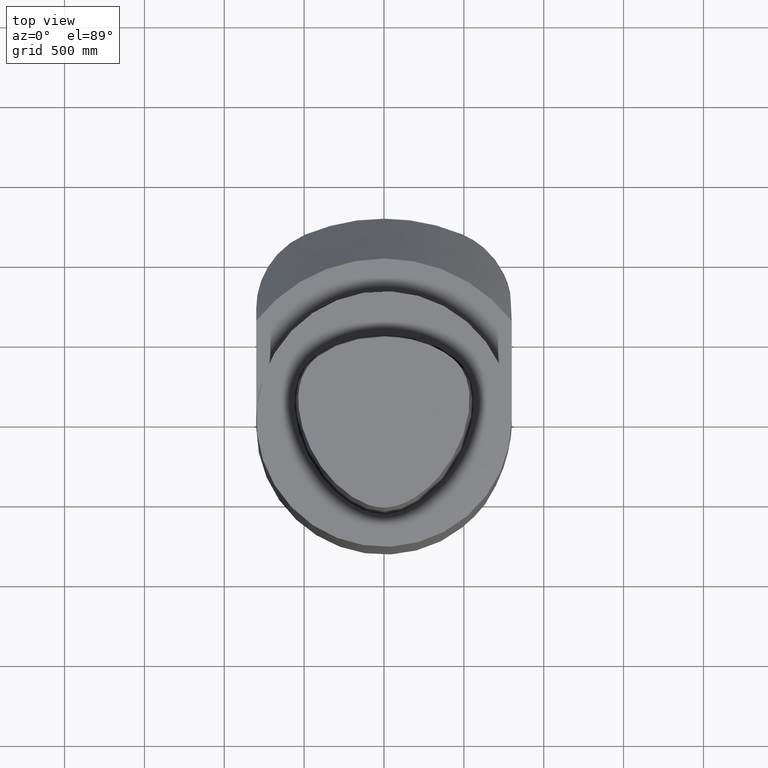
[diagram: clean part render]
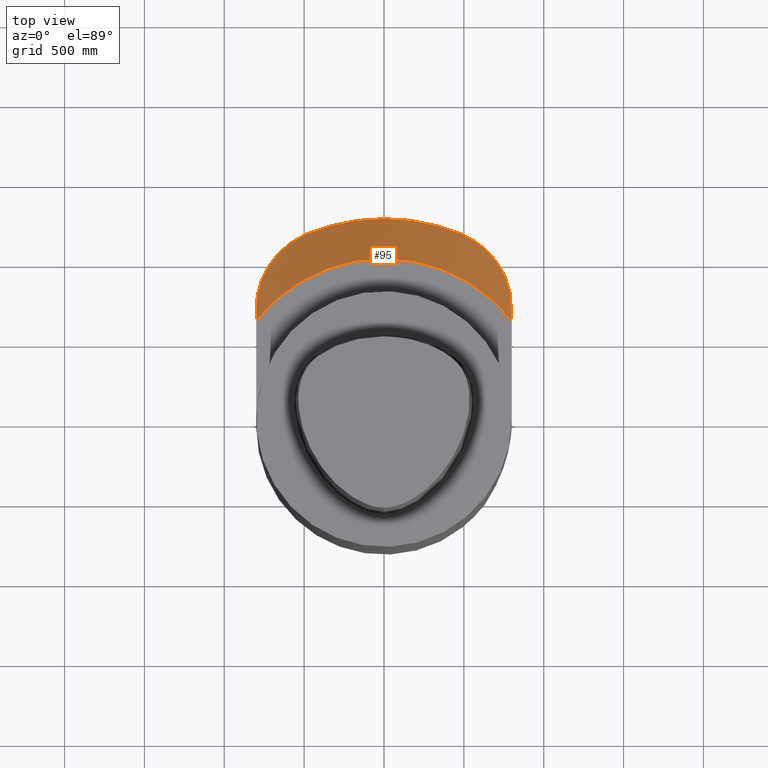
[diagram: same view with one face highlighted and labeled with its STEP entity id]
A machine part, top view. The second image highlights one B-rep face of the part: STEP entity #95.
In plain terms, the highlighted conical surface has half-angle 45 deg.
Its self-contained STEP definition (entity closure, byte-faithful):
#95=ADVANCED_FACE('Unnamed[1]',(#270),#271,.T.);
#108=EDGE_CURVE('Unnamed[1]',#292,#293,#294,.T.);
#167=EDGE_CURVE('Unnamed[1]',#376,#338,#377,.T.);
#174=EDGE_CURVE('Unnamed[1]',#293,#386,#387,.T.);
#188=EDGE_CURVE('Unnamed[1]',#403,#289,#404,.T.);
#212=EDGE_CURVE('Unnamed[1]',#376,#386,#435,.T.);
#218=EDGE_CURVE('Unnamed[1]',#338,#403,#441,.T.);
#229=EDGE_CURVE('Unnamed[1]',#289,#292,#453,.T.);
#270=FACE_OUTER_BOUND('',#488,.T.);
#271=CONICAL_SURFACE('',#489,45.0000000000013,0.785398163397416);
#289=VERTEX_POINT('',#515);
#292=VERTEX_POINT('',#520);
#293=VERTEX_POINT('',#521);
#294=B_SPLINE_CURVE_WITH_KNOTS('',3,(#522,#523,#524,#525,#526,#527,#528,#529,#530,#531,#532,#533,#534,#535,#536,#537),.UNSPECIFIED.,.F.,.F.,(4,2,2,2,2,2,2,4),(3.99685533282081,7.99371066564163,11.9905659984624,15.9874213312833,19.2410907200873,22.4947601088912,25.7484294976952,29.0020988864992),.UNSPECIFIED.);
#338=VERTEX_POINT('',#599);
#376=VERTEX_POINT('',#701);
#377=B_SPLINE_CURVE_WITH_KNOTS('',3,(#702,#703,#704,#705,#706,#707,#708,#709,#710,#711,#712,#713,#714,#715,#716,#717,#718,#719),.UNSPECIFIED.,.F.,.F.,(4,2,2,2,2,2,2,2,4),(25.7528245711178,29.0069489375672,32.2610733040165,35.5151976704659,38.7693220369153,42.0234464033646,46.021059271307,50.0186721392495,54.0162850071919),.UNSPECIFIED.);
#386=VERTEX_POINT('',#731);
#387=B_SPLINE_CURVE_WITH_KNOTS('',3,(#732,#733,#734,#735,#736,#737,#738,#739,#740,#741,#742,#743,#744,#745),.UNSPECIFIED.,.F.,.F.,(4,2,2,2,2,2,4),(51.7908781094984,56.4993030721826,61.2077280348668,65.916152997551,70.6245779602351,75.3330029229193,80.0417454363844),.UNSPECIFIED.);
#403=VERTEX_POINT('',#767);
#404=CIRCLE('',#768,40.000000000002);
#435=CIRCLE('',#877,50.0000000000006);
#441=(B_SPLINE_CURVE(2,(#889,#890,#891),.UNSPECIFIED.,.F.,.F.)B_SPLINE_CURVE_WITH_KNOTS((3,3),(0.0,17.3552936339432),.UNSPECIFIED.)RATIONAL_B_SPLINE_CURVE((1.0,1.01264270198957,1.0))BOUNDED_CURVE()REPRESENTATION_ITEM('')GEOMETRIC_REPRESENTATION_ITEM()CURVE());
#453=(B_SPLINE_CURVE(2,(#989,#990,#991),.UNSPECIFIED.,.F.,.F.)B_SPLINE_CURVE_WITH_KNOTS((3,3),(0.0,17.9505613842272),.UNSPECIFIED.)RATIONAL_B_SPLINE_CURVE((1.0,1.01227031404473,1.0))BOUNDED_CURVE()REPRESENTATION_ITEM('')GEOMETRIC_REPRESENTATION_ITEM()CURVE());
#488=EDGE_LOOP('',(#1050,#1051,#1052,#1053,#1054,#1055,#1056));
#489=AXIS2_PLACEMENT_3D('',#1057,#1058,#1059);
#515=CARTESIAN_POINT('',(31.4999999999998,24.6525860712455,-24.0));
#520=CARTESIAN_POINT('',(31.1202210060076,31.5855458145115,-28.3408937648218));
#521=CARTESIAN_POINT('',(19.169546318746,46.1775147707604,-33.99834373727));
#522=CARTESIAN_POINT('',(31.4836714121862,26.8985008861559,-25.4095510180065));
#523=CARTESIAN_POINT('',(31.5307709689678,28.0633682666181,-26.2020264842946));
#524=CARTESIAN_POINT('',(31.4762891277182,29.2735751745386,-26.9734597059358));
#525=CARTESIAN_POINT('',(31.1345513801991,31.7055286309925,-28.4254444635838));
#526=CARTESIAN_POINT('',(30.8469485336614,32.9286082486609,-29.1069395953025));
#527=CARTESIAN_POINT('',(30.04246955808,35.3059537151175,-30.3451062098025));
#528=CARTESIAN_POINT('',(29.5254030342725,36.4601202044391,-30.9018447518448));
#529=CARTESIAN_POINT('',(28.4181286849675,38.420893460769,-31.779588988991));
#530=CARTESIAN_POINT('',(27.826692802136,39.3098035346396,-32.1507569772398));
#531=CARTESIAN_POINT('',(26.4633599374821,41.0217333989237,-32.8057572576398));
#532=CARTESIAN_POINT('',(25.6913906263684,41.8446750714734,-33.0896431678623));
#533=CARTESIAN_POINT('',(24.0041260234216,43.3567529970739,-33.5456837693404));
#534=CARTESIAN_POINT('',(23.0874184455948,44.0470382876636,-33.7182271613306));
#535=CARTESIAN_POINT('',(21.1697701190347,45.25007503279,-33.944570245779));
#536=CARTESIAN_POINT('',(20.1687876707419,45.7627649262388,-33.9983438433738));
#537=CARTESIAN_POINT('',(19.1670899300591,46.1785345230162,-33.9983438433738));
#599=CARTESIAN_POINT('',(-31.5000000000001,27.710094358173,-25.9535377452093));
#701=CARTESIAN_POINT('',(-19.4720041661734,46.0525900873402,-33.9999999999993));
#702=CARTESIAN_POINT('',(-15.9912740201936,47.1992825833284,-33.8346578313695));
#703=CARTESIAN_POINT('',(-17.0943964799877,46.9450685448622,-33.9478644538266));
#704=CARTESIAN_POINT('',(-18.1643867689897,46.5982531012473,-34.0016554433048));
#705=CARTESIAN_POINT('',(-20.1681004955637,45.7666894278164,-34.0016554433048));
#706=CARTESIAN_POINT('',(-21.1692363925338,45.2539642711425,-33.9478644538266));
#707=CARTESIAN_POINT('',(-23.0871640085857,44.0508144823768,-33.7214512089124));
#708=CARTESIAN_POINT('',(-24.0039974557535,43.3604514558362,-33.5488550663357));
#709=CARTESIAN_POINT('',(-25.6914750305883,41.8481871820982,-33.0926781951172));
#710=CARTESIAN_POINT('',(-26.4635319745331,41.0251364661087,-32.8087085442073));
#711=CARTESIAN_POINT('',(-27.8269974150747,39.3129729202713,-32.1535181277358));
#712=CARTESIAN_POINT('',(-28.4184782509614,38.423938232725,-31.7822437033853));
#713=CARTESIAN_POINT('',(-29.5258390652618,36.462837326873,-30.9042276131235));
#714=CARTESIAN_POINT('',(-30.0429248640911,35.3084595234586,-30.3473077978641));
#715=CARTESIAN_POINT('',(-30.8473639987573,32.9306998961041,-29.1087480764684));
#716=CARTESIAN_POINT('',(-31.1349077743321,31.7074174652534,-28.4270410576744));
#717=CARTESIAN_POINT('',(-31.4764624864618,29.2750860626482,-26.9746146615626));
#718=CARTESIAN_POINT('',(-31.5308202847316,28.0647036723589,-26.2029512717335));
#719=CARTESIAN_POINT('',(-31.4835740242651,26.8996813667174,-25.4102437927157));
#731=CARTESIAN_POINT('',(-0.00215974573172323,49.9999999533556,-33.9999999999993));
#732=CARTESIAN_POINT('',(23.6459115898771,44.052997292243,-33.9979570117273));
#733=CARTESIAN_POINT('',(22.1814966518667,44.8391810661555,-33.9980835270623));
#734=CARTESIAN_POINT('',(20.6730336621863,45.5546367378678,-33.998213847362));
#735=CARTESIAN_POINT('',(17.5934830443397,46.8304944196465,-33.9984798971886));
#736=CARTESIAN_POINT('',(16.0210177916453,47.3914671794928,-33.9986157457312));
#737=CARTESIAN_POINT('',(12.8383320599857,48.351100271922,-33.998890703415));
#738=CARTESIAN_POINT('',(11.2281103078048,48.7497563817975,-33.9990298126657));
#739=CARTESIAN_POINT('',(7.99943411484802,49.382650340007,-33.9993087412234));
#740=CARTESIAN_POINT('',(6.38081301651385,49.6169115926764,-33.9994485749278));
#741=CARTESIAN_POINT('',(3.16583398429019,49.9255241333955,-33.9997263178511));
#742=CARTESIAN_POINT('',(1.56947497584817,49.9998642271643,-33.999864227163));
#743=CARTESIAN_POINT('',(-1.56958082610766,50.0001354088223,-34.000135408821));
#744=CARTESIAN_POINT('',(-3.16605859430771,49.9260611345788,-34.0002733272821));
#745=CARTESIAN_POINT('',(-4.77367907535406,49.7720123064385,-34.000412207767));
#767=CARTESIAN_POINT('',(-31.5000000000001,24.6525860712452,-24.0));
#768=AXIS2_PLACEMENT_3D('',#1193,#1194,#1195);
#877=AXIS2_PLACEMENT_3D('',#1246,#1247,#1248);
#889=CARTESIAN_POINT('',(-31.5000000000002,38.8297566307085,-33.9999999999993));
#890=CARTESIAN_POINT('',(-31.5000000000001,30.9535507643402,-27.8833768607101));
#891=CARTESIAN_POINT('',(-31.5000000000001,24.6525860712451,-24.0));
#989=CARTESIAN_POINT('',(31.4999999999999,24.6525860712454,-24.0));
#990=CARTESIAN_POINT('',(31.1639087074079,31.3151129702548,-27.8415410528293));
#991=CARTESIAN_POINT('',(30.6250731240223,39.5240545960501,-34.0004599535158));
#1050=ORIENTED_EDGE('',*,*,#229,.T.);
#1051=ORIENTED_EDGE('',*,*,#108,.T.);
#1052=ORIENTED_EDGE('',*,*,#174,.T.);
#1053=ORIENTED_EDGE('',*,*,#212,.F.);
#1054=ORIENTED_EDGE('',*,*,#167,.T.);
#1055=ORIENTED_EDGE('',*,*,#218,.T.);
#1056=ORIENTED_EDGE('',*,*,#188,.T.);
#1057=CARTESIAN_POINT('',(3.55147571752728E-015,-1.77573785876364E-015,-28.9999999999996));
#1058=DIRECTION('',(1.22464679914735E-016,-6.12323399573677E-017,-1.0));
#1059=DIRECTION('',(1.0,-1.83697019872103E-016,1.22464679914735E-016));
#1193=CARTESIAN_POINT('',(2.93915231795365E-015,-1.46957615897682E-015,-24.0));
#1194=DIRECTION('',(1.22464679914735E-016,-6.12323399573677E-017,-1.0));
#1195=DIRECTION('',(1.0,-1.83697019872103E-016,1.22464679914735E-016));
#1246=CARTESIAN_POINT('',(4.16379911710091E-015,-2.08189955855046E-015,-33.9999999999993));
#1247=DIRECTION('',(1.22464679914735E-016,-6.12323399573677E-017,-1.0));
#1248=DIRECTION('',(1.0,-1.83697019872103E-016,1.22464679914735E-016));